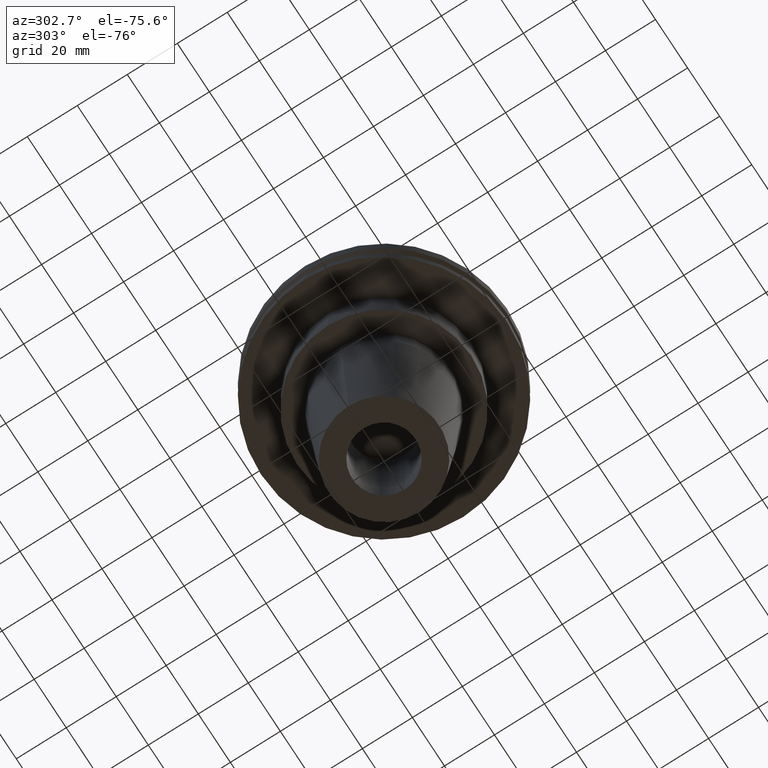
[diagram: clean part render]
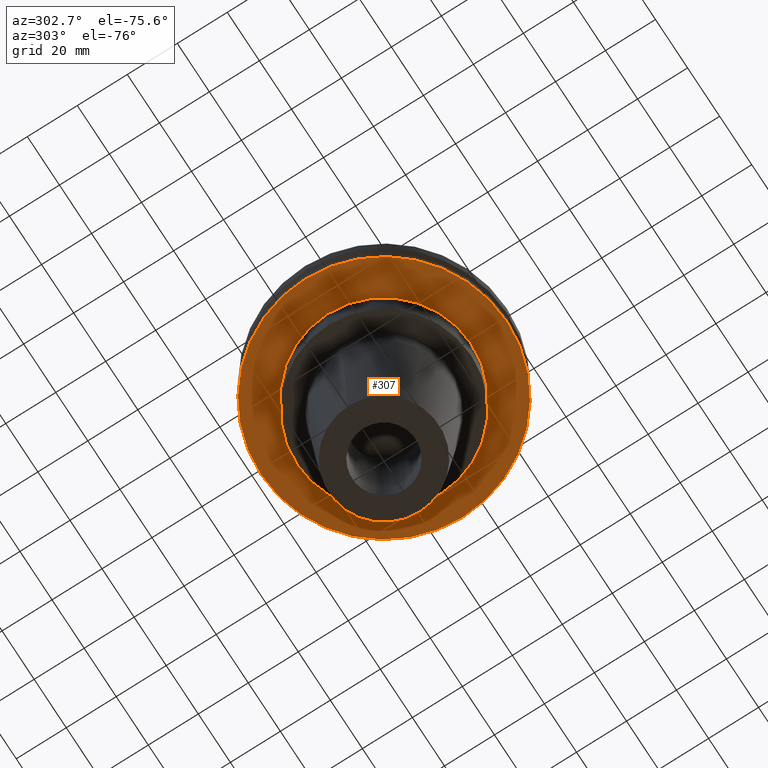
[diagram: same view with one face highlighted and labeled with its STEP entity id]
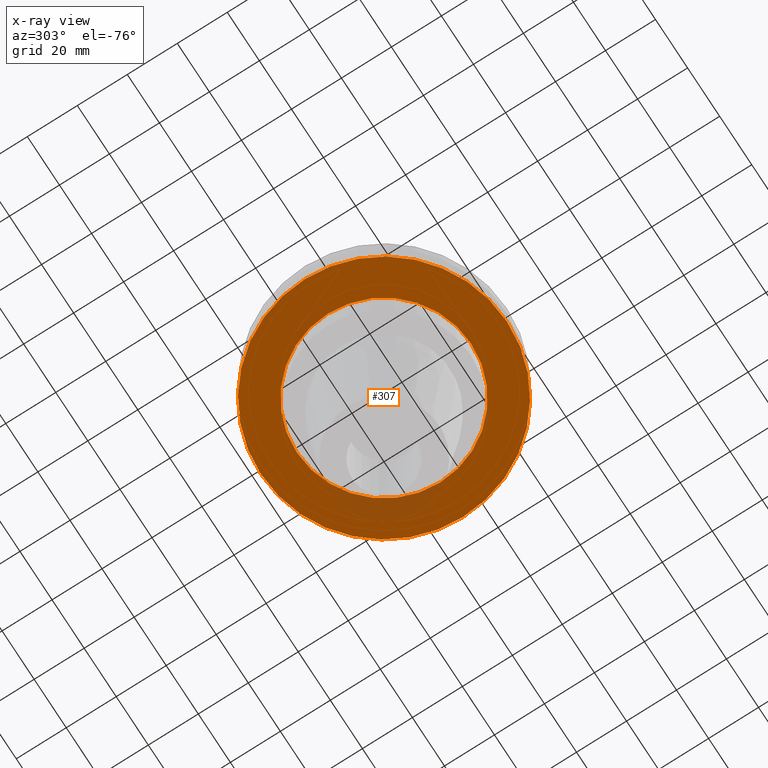
[diagram: x-ray of the same camera — body ghosted, the highlighted face saturated]
A machine part, auxiliary view. The second image highlights one B-rep face of the part: STEP entity #307.
The next image is the same camera in x-ray: the body ghosted, the highlighted face saturated — about 7% of this face is hidden behind the body in this view.
In plain terms, the highlighted planar face has unit normal (0, -0, 1).
Its self-contained STEP definition (entity closure, byte-faithful):
#24 = AXIS2_PLACEMENT_3D ( 'NONE', #324, #774, #55 ) ;
#55 = DIRECTION ( 'NONE',  ( 1.000000000000000000, 0.000000000000000000, 0.000000000000000000 ) ) ;
#64 = CIRCLE ( 'NONE', #593, 49.21499999999998920 ) ;
#83 = AXIS2_PLACEMENT_3D ( 'NONE', #242, #238, #580 ) ;
#112 = VERTEX_POINT ( 'NONE', #342 ) ;
#163 = FACE_OUTER_BOUND ( 'NONE', #815, .T. ) ;
#177 = ORIENTED_EDGE ( 'NONE', *, *, #727, .F. ) ;
#186 = EDGE_LOOP ( 'NONE', ( #359, #616 ) ) ;
#234 = DIRECTION ( 'NONE',  ( -0.000000000000000000, -0.000000000000000000, 1.000000000000000000 ) ) ;
#238 = DIRECTION ( 'NONE',  ( -0.000000000000000000, -0.000000000000000000, 1.000000000000000000 ) ) ;
#240 = EDGE_CURVE ( 'NONE', #673, #377, #417, .T. ) ;
#242 = CARTESIAN_POINT ( 'NONE',  ( 0.000000000000000000, 0.000000000000000000, -19.04999999999999716 ) ) ;
#257 = AXIS2_PLACEMENT_3D ( 'NONE', #687, #234, #303 ) ;
#287 = CIRCLE ( 'NONE', #514, 49.21499999999998920 ) ;
#303 = DIRECTION ( 'NONE',  ( 1.000000000000000000, 0.000000000000000000, 0.000000000000000000 ) ) ;
#307 = ADVANCED_FACE ( 'NONE', ( #163, #455 ), #839, .F. ) ;
#314 = CARTESIAN_POINT ( 'NONE',  ( -34.92499999999999716, 4.277078946022130887E-15, -19.04999999999999716 ) ) ;
#320 = DIRECTION ( 'NONE',  ( 1.000000000000000000, 0.000000000000000000, 0.000000000000000000 ) ) ;
#324 = CARTESIAN_POINT ( 'NONE',  ( 0.000000000000000000, 49.21499999999998920, -19.04999999999999716 ) ) ;
#326 = CARTESIAN_POINT ( 'NONE',  ( 0.000000000000000000, 0.000000000000000000, -19.04999999999999716 ) ) ;
#342 = CARTESIAN_POINT ( 'NONE',  ( 49.21499999999998920, 0.000000000000000000, -19.04999999999999716 ) ) ;
#357 = EDGE_CURVE ( 'NONE', #377, #673, #459, .T. ) ;
#359 = ORIENTED_EDGE ( 'NONE', *, *, #357, .T. ) ;
#377 = VERTEX_POINT ( 'NONE', #658 ) ;
#417 = CIRCLE ( 'NONE', #257, 34.92499999999999716 ) ;
#455 = FACE_BOUND ( 'NONE', #186, .T. ) ;
#459 = CIRCLE ( 'NONE', #83, 34.92499999999999716 ) ;
#514 = AXIS2_PLACEMENT_3D ( 'NONE', #326, #530, #320 ) ;
#530 = DIRECTION ( 'NONE',  ( -0.000000000000000000, -0.000000000000000000, 1.000000000000000000 ) ) ;
#547 = DIRECTION ( 'NONE',  ( -0.000000000000000000, -0.000000000000000000, 1.000000000000000000 ) ) ;
#566 = ORIENTED_EDGE ( 'NONE', *, *, #599, .F. ) ;
#580 = DIRECTION ( 'NONE',  ( 1.000000000000000000, 0.000000000000000000, 0.000000000000000000 ) ) ;
#593 = AXIS2_PLACEMENT_3D ( 'NONE', #797, #547, #743 ) ;
#599 = EDGE_CURVE ( 'NONE', #112, #699, #287, .T. ) ;
#616 = ORIENTED_EDGE ( 'NONE', *, *, #240, .T. ) ;
#658 = CARTESIAN_POINT ( 'NONE',  ( 34.92499999999999716, 0.000000000000000000, -19.04999999999999716 ) ) ;
#673 = VERTEX_POINT ( 'NONE', #314 ) ;
#687 = CARTESIAN_POINT ( 'NONE',  ( 0.000000000000000000, 0.000000000000000000, -19.04999999999999716 ) ) ;
#699 = VERTEX_POINT ( 'NONE', #724 ) ;
#724 = CARTESIAN_POINT ( 'NONE',  ( -49.21499999999998920, 6.027099222003697037E-15, -19.04999999999999716 ) ) ;
#727 = EDGE_CURVE ( 'NONE', #699, #112, #64, .T. ) ;
#743 = DIRECTION ( 'NONE',  ( 1.000000000000000000, 0.000000000000000000, 0.000000000000000000 ) ) ;
#774 = DIRECTION ( 'NONE',  ( 0.000000000000000000, -0.000000000000000000, 1.000000000000000000 ) ) ;
#797 = CARTESIAN_POINT ( 'NONE',  ( 0.000000000000000000, 0.000000000000000000, -19.04999999999999716 ) ) ;
#815 = EDGE_LOOP ( 'NONE', ( #566, #177 ) ) ;
#839 = PLANE ( 'NONE',  #24 ) ;